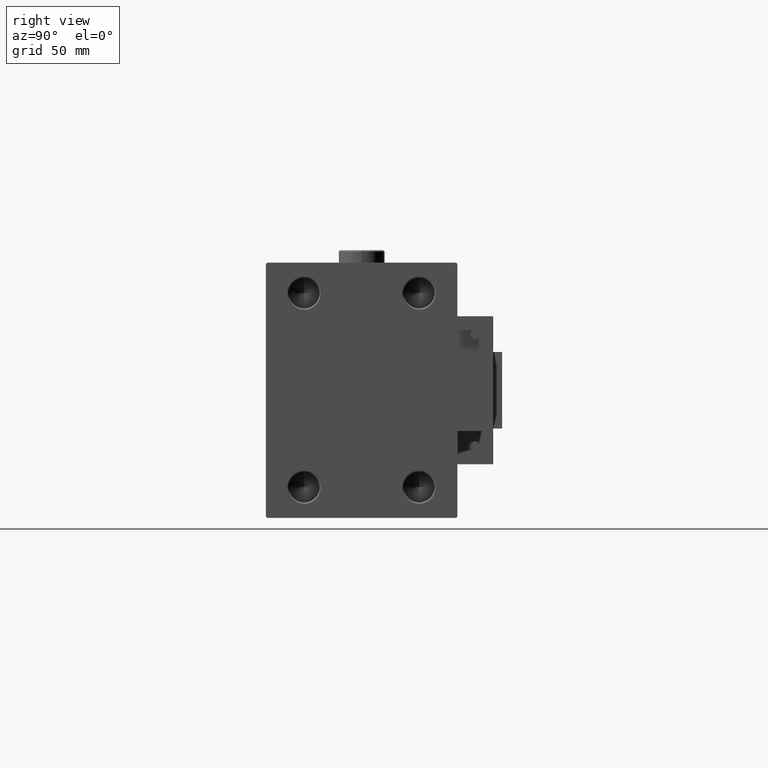
[diagram: clean part render]
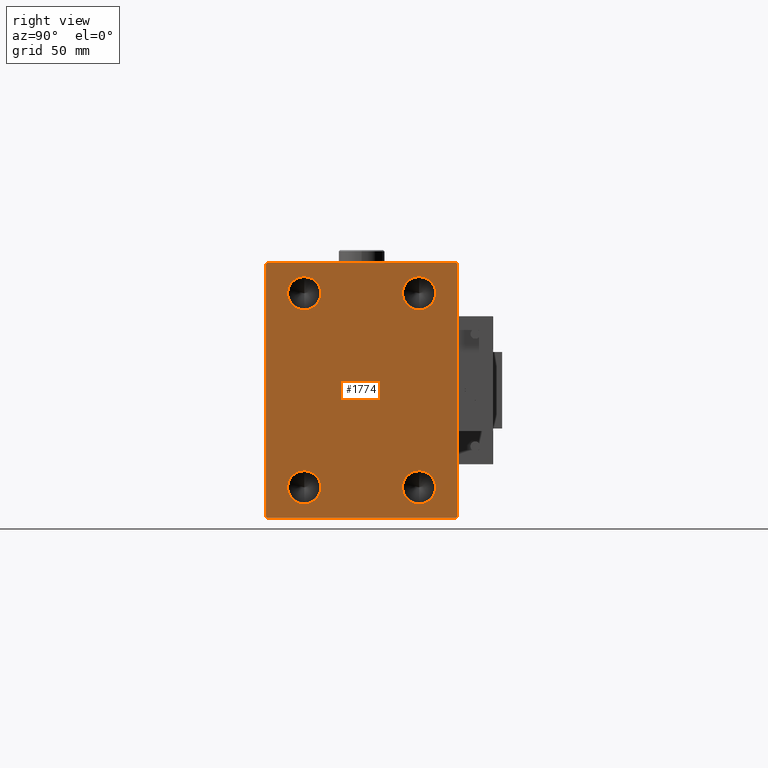
[diagram: same view with one face highlighted and labeled with its STEP entity id]
A machine part, right view. The second image highlights one B-rep face of the part: STEP entity #1774.
In plain terms, the highlighted planar face has unit normal (1, 0, 0).
Its self-contained STEP definition (entity closure, byte-faithful):
#123 = DIRECTION ( 'NONE',  ( 0.000000000000000000, -1.387778780781445676E-16, 1.000000000000000000 ) ) ;
#240 = LINE ( 'NONE', #509, #24642 ) ;
#253 = LINE ( 'NONE', #44032, #46958 ) ;
#509 = CARTESIAN_POINT ( 'NONE',  ( 98.00000000000000000, -37.50000000000000000, -50.00000000000000000 ) ) ;
#1144 = VECTOR ( 'NONE', #123, 1000.000000000000000 ) ;
#1169 = FACE_BOUND ( 'NONE', #53626, .T. ) ;
#1774 = ADVANCED_FACE ( 'NONE', ( #43575, #13830, #30933, #1169, #18295 ), #26715, .T. ) ;
#1853 = DIRECTION ( 'NONE',  ( 1.000000000000000000, -0.000000000000000000, -0.000000000000000000 ) ) ;
#1895 = EDGE_CURVE ( 'NONE', #48554, #3892, #31451, .T. ) ;
#2074 = ORIENTED_EDGE ( 'NONE', *, *, #54555, .F. ) ;
#2260 = AXIS2_PLACEMENT_3D ( 'NONE', #50411, #41422, #45916 ) ;
#2465 = CARTESIAN_POINT ( 'NONE',  ( 98.00000000000000000, 22.50000000000000000, -38.00000000000000711 ) ) ;
#2957 = EDGE_CURVE ( 'NONE', #27176, #36067, #52093, .T. ) ;
#3074 = EDGE_CURVE ( 'NONE', #41300, #55347, #28000, .T. ) ;
#3236 = AXIS2_PLACEMENT_3D ( 'NONE', #39490, #1853, #31338 ) ;
#3422 = DIRECTION ( 'NONE',  ( 0.000000000000000000, 1.000000000000000000, 0.000000000000000000 ) ) ;
#3486 = CARTESIAN_POINT ( 'NONE',  ( 98.00000000000000000, 37.49999999999999289, 50.00000000000000711 ) ) ;
#3791 = CARTESIAN_POINT ( 'NONE',  ( 98.00000000000000000, 37.50000000000000711, -50.00000000000000000 ) ) ;
#3892 = VERTEX_POINT ( 'NONE', #51698 ) ;
#4792 = VERTEX_POINT ( 'NONE', #8948 ) ;
#4943 = CIRCLE ( 'NONE', #2260, 6.499999999999992006 ) ;
#6022 = VERTEX_POINT ( 'NONE', #49625 ) ;
#6716 = CARTESIAN_POINT ( 'NONE',  ( 98.00000000000000000, 22.50000000000000000, 37.99999999999999289 ) ) ;
#7423 = EDGE_CURVE ( 'NONE', #55347, #31441, #42256, .T. ) ;
#8417 = CARTESIAN_POINT ( 'NONE',  ( 98.00000000000000000, -22.50000000000000000, 31.50000000000000000 ) ) ;
#8736 = EDGE_LOOP ( 'NONE', ( #34753, #34677 ) ) ;
#8948 = CARTESIAN_POINT ( 'NONE',  ( 98.00000000000000000, -37.00000000000000000, -50.00000000000000000 ) ) ;
#9008 = EDGE_CURVE ( 'NONE', #31441, #27026, #253, .T. ) ;
#9278 = CARTESIAN_POINT ( 'NONE',  ( 98.00000000000000000, -43.50000000000000711, -43.50000000000000711 ) ) ;
#9468 = DIRECTION ( 'NONE',  ( 0.000000000000000000, 0.000000000000000000, -1.000000000000000000 ) ) ;
#11510 = DIRECTION ( 'NONE',  ( 0.000000000000000000, 0.000000000000000000, -1.000000000000000000 ) ) ;
#11580 = VERTEX_POINT ( 'NONE', #51266 ) ;
#12030 = DIRECTION ( 'NONE',  ( 1.000000000000000000, -0.000000000000000000, -0.000000000000000000 ) ) ;
#12912 = EDGE_CURVE ( 'NONE', #27026, #40442, #50934, .T. ) ;
#13440 = DIRECTION ( 'NONE',  ( 0.000000000000000000, 0.000000000000000000, -1.000000000000000000 ) ) ;
#13830 = FACE_BOUND ( 'NONE', #8736, .T. ) ;
#13985 = CIRCLE ( 'NONE', #31002, 6.499999999999992006 ) ;
#14068 = CIRCLE ( 'NONE', #52616, 6.499999999999992006 ) ;
#14435 = AXIS2_PLACEMENT_3D ( 'NONE', #16273, #28616, #11510 ) ;
#14491 = CARTESIAN_POINT ( 'NONE',  ( 98.00000000000000000, -22.50000000000000000, 37.99999999999999289 ) ) ;
#15814 = EDGE_CURVE ( 'NONE', #33974, #37931, #4943, .T. ) ;
#16273 = CARTESIAN_POINT ( 'NONE',  ( 98.00000000000000000, 22.50000000000000000, -38.00000000000000711 ) ) ;
#17749 = DIRECTION ( 'NONE',  ( 0.000000000000000000, 0.000000000000000000, -1.000000000000000000 ) ) ;
#17875 = CARTESIAN_POINT ( 'NONE',  ( 98.00000000000000000, -22.50000000000000000, -38.00000000000000711 ) ) ;
#17909 = LINE ( 'NONE', #42923, #47087 ) ;
#18007 = ORIENTED_EDGE ( 'NONE', *, *, #39371, .T. ) ;
#18295 = FACE_OUTER_BOUND ( 'NONE', #44025, .T. ) ;
#20112 = CARTESIAN_POINT ( 'NONE',  ( 98.00000000000000000, -36.99999999999999289, 49.99999999999998579 ) ) ;
#20412 = LINE ( 'NONE', #29106, #30326 ) ;
#21236 = DIRECTION ( 'NONE',  ( 0.000000000000000000, -0.7071067811865525687, -0.7071067811865425767 ) ) ;
#21769 = ORIENTED_EDGE ( 'NONE', *, *, #39383, .T. ) ;
#21957 = DIRECTION ( 'NONE',  ( 1.000000000000000000, 0.000000000000000000, 0.000000000000000000 ) ) ;
#22477 = AXIS2_PLACEMENT_3D ( 'NONE', #39361, #21957, #17749 ) ;
#23722 = VECTOR ( 'NONE', #34004, 1000.000000000000114 ) ;
#23785 = DIRECTION ( 'NONE',  ( 0.000000000000000000, 0.000000000000000000, -1.000000000000000000 ) ) ;
#23885 = AXIS2_PLACEMENT_3D ( 'NONE', #14491, #52674, #35261 ) ;
#24023 = ORIENTED_EDGE ( 'NONE', *, *, #2957, .F. ) ;
#24317 = VECTOR ( 'NONE', #49898, 1000.000000000000000 ) ;
#24642 = VECTOR ( 'NONE', #3422, 1000.000000000000000 ) ;
#26715 = PLANE ( 'NONE',  #22477 ) ;
#26832 = CARTESIAN_POINT ( 'NONE',  ( 98.00000000000000000, 22.50000000000000000, -44.50000000000000000 ) ) ;
#27026 = VERTEX_POINT ( 'NONE', #37279 ) ;
#27176 = VERTEX_POINT ( 'NONE', #29393 ) ;
#28000 = LINE ( 'NONE', #32758, #24317 ) ;
#28616 = DIRECTION ( 'NONE',  ( 1.000000000000000000, -0.000000000000000000, -0.000000000000000000 ) ) ;
#29106 = CARTESIAN_POINT ( 'NONE',  ( 98.00000000000000000, -43.49999999999972999, 43.50000000000034106 ) ) ;
#29297 = AXIS2_PLACEMENT_3D ( 'NONE', #2465, #12030, #45703 ) ;
#29393 = CARTESIAN_POINT ( 'NONE',  ( 98.00000000000000000, 22.50000000000000000, 44.49999999999998579 ) ) ;
#29470 = EDGE_LOOP ( 'NONE', ( #53206, #44015 ) ) ;
#30326 = VECTOR ( 'NONE', #21236, 999.9999999999998863 ) ;
#30362 = ORIENTED_EDGE ( 'NONE', *, *, #38386, .T. ) ;
#30933 = FACE_BOUND ( 'NONE', #29470, .T. ) ;
#31002 = AXIS2_PLACEMENT_3D ( 'NONE', #17875, #52130, #9468 ) ;
#31338 = DIRECTION ( 'NONE',  ( 0.000000000000000000, 0.000000000000000000, -1.000000000000000000 ) ) ;
#31441 = VERTEX_POINT ( 'NONE', #33219 ) ;
#31451 = CIRCLE ( 'NONE', #14435, 6.499999999999992006 ) ;
#32089 = ORIENTED_EDGE ( 'NONE', *, *, #12912, .T. ) ;
#32540 = DIRECTION ( 'NONE',  ( 1.000000000000000000, -0.000000000000000000, -0.000000000000000000 ) ) ;
#32758 = CARTESIAN_POINT ( 'NONE',  ( 98.00000000000000000, 43.49999999999974420, -43.50000000000034817 ) ) ;
#33219 = CARTESIAN_POINT ( 'NONE',  ( 98.00000000000000000, 37.49999999999999289, 49.50000000000002842 ) ) ;
#33585 = CARTESIAN_POINT ( 'NONE',  ( 98.00000000000000000, 37.00000000000001421, -50.00000000000000000 ) ) ;
#33974 = VERTEX_POINT ( 'NONE', #41341 ) ;
#34004 = DIRECTION ( 'NONE',  ( -0.000000000000000000, 0.7071067811865474617, -0.7071067811865474617 ) ) ;
#34277 = LINE ( 'NONE', #9278, #23722 ) ;
#34566 = VERTEX_POINT ( 'NONE', #8417 ) ;
#34677 = ORIENTED_EDGE ( 'NONE', *, *, #52550, .F. ) ;
#34753 = ORIENTED_EDGE ( 'NONE', *, *, #43262, .F. ) ;
#35261 = DIRECTION ( 'NONE',  ( 0.000000000000000000, 0.000000000000000000, -1.000000000000000000 ) ) ;
#36067 = VERTEX_POINT ( 'NONE', #53505 ) ;
#37279 = CARTESIAN_POINT ( 'NONE',  ( 98.00000000000000000, 37.00000000000000711, 50.00000000000000711 ) ) ;
#37551 = CARTESIAN_POINT ( 'NONE',  ( 98.00000000000000000, 37.50000000000000711, -49.50000000000001421 ) ) ;
#37912 = ORIENTED_EDGE ( 'NONE', *, *, #9008, .T. ) ;
#37931 = VERTEX_POINT ( 'NONE', #48758 ) ;
#38144 = VECTOR ( 'NONE', #46991, 1000.000000000000000 ) ;
#38386 = EDGE_CURVE ( 'NONE', #11580, #4792, #34277, .T. ) ;
#39361 = CARTESIAN_POINT ( 'NONE',  ( 98.00000000000000000, 0.000000000000000000, 0.000000000000000000 ) ) ;
#39371 = EDGE_CURVE ( 'NONE', #4792, #41300, #240, .T. ) ;
#39383 = EDGE_CURVE ( 'NONE', #6022, #11580, #17909, .T. ) ;
#39490 = CARTESIAN_POINT ( 'NONE',  ( 98.00000000000000000, -22.50000000000000000, 37.99999999999999289 ) ) ;
#40434 = AXIS2_PLACEMENT_3D ( 'NONE', #40912, #50184, #23785 ) ;
#40442 = VERTEX_POINT ( 'NONE', #20112 ) ;
#40606 = CARTESIAN_POINT ( 'NONE',  ( 98.00000000000000000, -22.50000000000000000, 44.49999999999998579 ) ) ;
#40852 = ORIENTED_EDGE ( 'NONE', *, *, #46544, .T. ) ;
#40912 = CARTESIAN_POINT ( 'NONE',  ( 98.00000000000000000, 22.50000000000000000, 37.99999999999999289 ) ) ;
#41300 = VERTEX_POINT ( 'NONE', #33585 ) ;
#41341 = CARTESIAN_POINT ( 'NONE',  ( 98.00000000000000000, -22.50000000000000000, -44.50000000000000000 ) ) ;
#41422 = DIRECTION ( 'NONE',  ( 1.000000000000000000, -0.000000000000000000, -0.000000000000000000 ) ) ;
#42256 = LINE ( 'NONE', #3791, #1144 ) ;
#42923 = CARTESIAN_POINT ( 'NONE',  ( 98.00000000000000000, -37.50000000000000000, 49.99999999999998579 ) ) ;
#43262 = EDGE_CURVE ( 'NONE', #53463, #34566, #50782, .T. ) ;
#43476 = DIRECTION ( 'NONE',  ( -0.000000000000000000, -0.7071067811865525687, 0.7071067811865425767 ) ) ;
#43575 = FACE_BOUND ( 'NONE', #53288, .T. ) ;
#43978 = EDGE_CURVE ( 'NONE', #3892, #48554, #53501, .T. ) ;
#44015 = ORIENTED_EDGE ( 'NONE', *, *, #15814, .F. ) ;
#44025 = EDGE_LOOP ( 'NONE', ( #32089, #40852, #21769, #30362, #18007, #50712, #50830, #37912 ) ) ;
#44032 = CARTESIAN_POINT ( 'NONE',  ( 98.00000000000000000, 43.49999999999974420, 43.50000000000035527 ) ) ;
#44741 = ORIENTED_EDGE ( 'NONE', *, *, #43978, .F. ) ;
#45703 = DIRECTION ( 'NONE',  ( 0.000000000000000000, 0.000000000000000000, -1.000000000000000000 ) ) ;
#45916 = DIRECTION ( 'NONE',  ( 0.000000000000000000, 0.000000000000000000, -1.000000000000000000 ) ) ;
#46544 = EDGE_CURVE ( 'NONE', #40442, #6022, #20412, .T. ) ;
#46958 = VECTOR ( 'NONE', #43476, 999.9999999999998863 ) ;
#46991 = DIRECTION ( 'NONE',  ( 0.000000000000000000, -1.000000000000000000, -2.775557561562891844E-16 ) ) ;
#47087 = VECTOR ( 'NONE', #13440, 1000.000000000000000 ) ;
#48554 = VERTEX_POINT ( 'NONE', #26832 ) ;
#48758 = CARTESIAN_POINT ( 'NONE',  ( 98.00000000000000000, -22.50000000000000000, -31.50000000000001421 ) ) ;
#49625 = CARTESIAN_POINT ( 'NONE',  ( 98.00000000000000000, -37.50000000000000000, 49.49999999999998579 ) ) ;
#49673 = DIRECTION ( 'NONE',  ( 0.000000000000000000, 0.000000000000000000, -1.000000000000000000 ) ) ;
#49898 = DIRECTION ( 'NONE',  ( -0.000000000000000000, 0.7071067811865524577, 0.7071067811865426878 ) ) ;
#50184 = DIRECTION ( 'NONE',  ( 1.000000000000000000, -0.000000000000000000, -0.000000000000000000 ) ) ;
#50411 = CARTESIAN_POINT ( 'NONE',  ( 98.00000000000000000, -22.50000000000000000, -38.00000000000000711 ) ) ;
#50712 = ORIENTED_EDGE ( 'NONE', *, *, #3074, .T. ) ;
#50782 = CIRCLE ( 'NONE', #23885, 6.499999999999992006 ) ;
#50830 = ORIENTED_EDGE ( 'NONE', *, *, #7423, .T. ) ;
#50934 = LINE ( 'NONE', #3486, #38144 ) ;
#51266 = CARTESIAN_POINT ( 'NONE',  ( 98.00000000000000000, -37.50000000000000000, -49.49999999999997158 ) ) ;
#51698 = CARTESIAN_POINT ( 'NONE',  ( 98.00000000000000000, 22.50000000000000000, -31.50000000000001421 ) ) ;
#52093 = CIRCLE ( 'NONE', #40434, 6.499999999999992006 ) ;
#52130 = DIRECTION ( 'NONE',  ( 1.000000000000000000, -0.000000000000000000, -0.000000000000000000 ) ) ;
#52319 = ORIENTED_EDGE ( 'NONE', *, *, #1895, .F. ) ;
#52448 = EDGE_CURVE ( 'NONE', #37931, #33974, #13985, .T. ) ;
#52550 = EDGE_CURVE ( 'NONE', #34566, #53463, #53459, .T. ) ;
#52616 = AXIS2_PLACEMENT_3D ( 'NONE', #6716, #32540, #49673 ) ;
#52674 = DIRECTION ( 'NONE',  ( 1.000000000000000000, -0.000000000000000000, -0.000000000000000000 ) ) ;
#53206 = ORIENTED_EDGE ( 'NONE', *, *, #52448, .F. ) ;
#53288 = EDGE_LOOP ( 'NONE', ( #24023, #2074 ) ) ;
#53459 = CIRCLE ( 'NONE', #3236, 6.499999999999992006 ) ;
#53463 = VERTEX_POINT ( 'NONE', #40606 ) ;
#53501 = CIRCLE ( 'NONE', #29297, 6.499999999999992006 ) ;
#53505 = CARTESIAN_POINT ( 'NONE',  ( 98.00000000000000000, 22.50000000000000000, 31.50000000000000000 ) ) ;
#53626 = EDGE_LOOP ( 'NONE', ( #44741, #52319 ) ) ;
#54555 = EDGE_CURVE ( 'NONE', #36067, #27176, #14068, .T. ) ;
#55347 = VERTEX_POINT ( 'NONE', #37551 ) ;